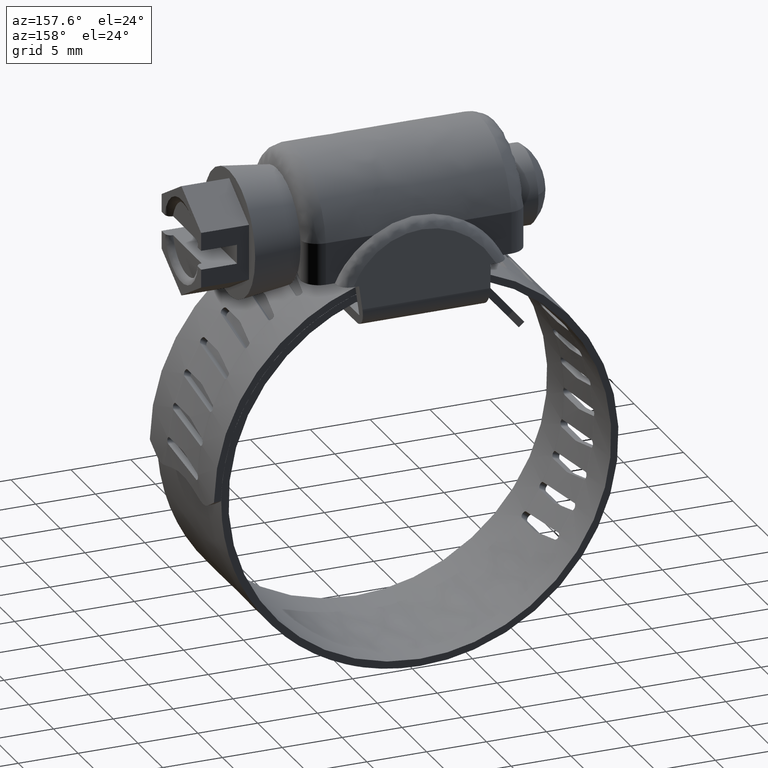
[diagram: clean part render]
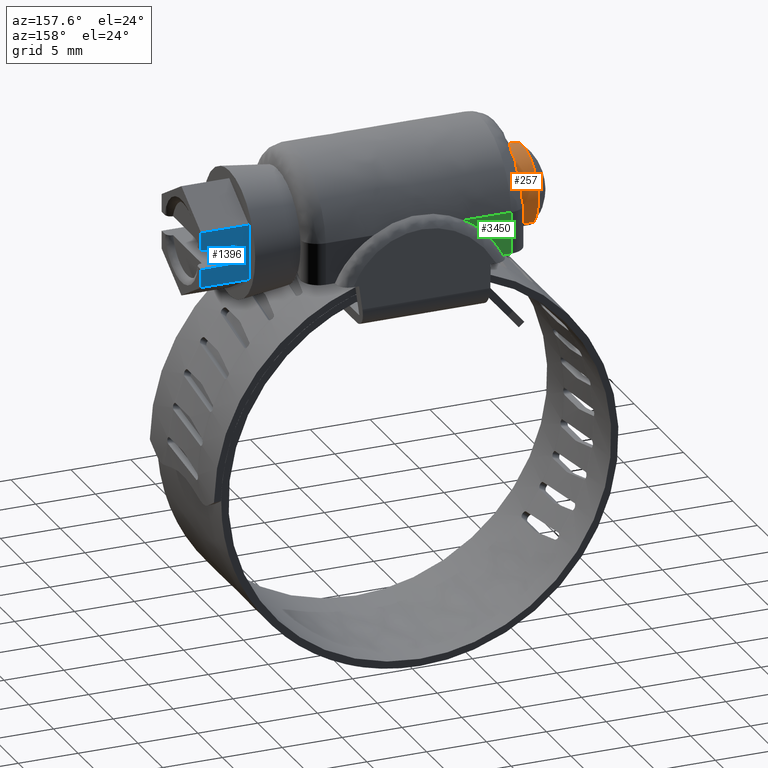
[diagram: same view with three faces highlighted in distinct colors, each labeled with its STEP entity id]
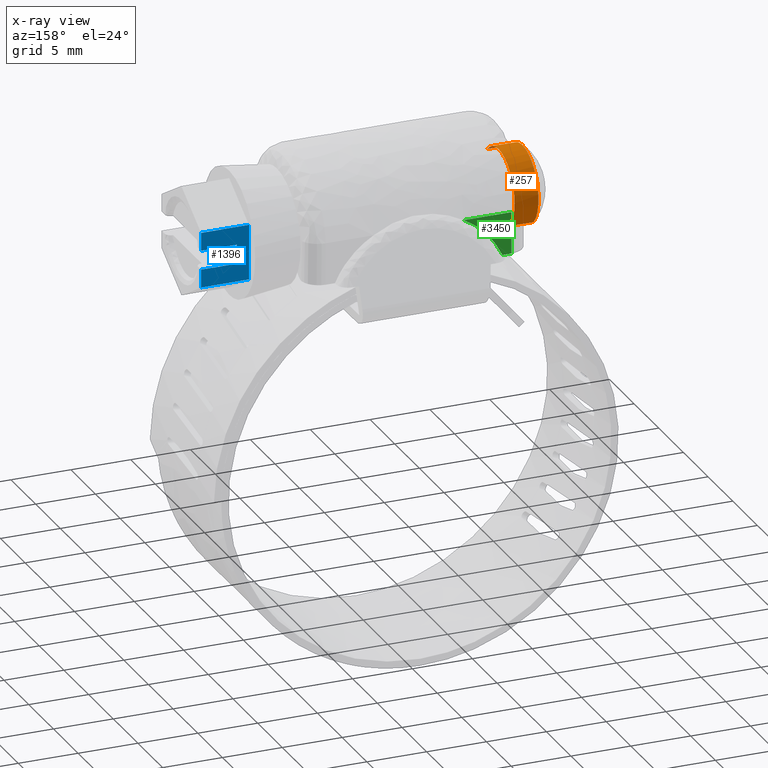
[diagram: x-ray of the same camera — body ghosted, the three highlighted faces saturated]
A machine part, auxiliary view with three faces highlighted in distinct colors.
The next image is the same camera in x-ray (body ghosted, the three faces saturated) — at least one of them is partly hidden behind the body in this view.
Their STEP definitions:

[orange] entity #257 — the highlighted face is a freeform B-spline surface patch.
#64=CARTESIAN_POINT('',(-9.249999999996469,2.277955025551250,13.509019092690551));
#65=VERTEX_POINT('',#64);
#92=CARTESIAN_POINT('',(-9.249999999999901,-2.277955025764112,18.145146907100699));
#93=VERTEX_POINT('',#92);
#104=CARTESIAN_POINT('',(-11.249997677830439,-2.277955695631956,18.145147586493419));
#105=VERTEX_POINT('',#104);
#106=CARTESIAN_POINT('',(-9.249999999999901,-2.277955025764112,18.145146907100699));
#107=CARTESIAN_POINT('',(-11.249997677830439,-2.277955695631956,18.145147586493419));
#108=QUASI_UNIFORM_CURVE('',1,(#106,#107),.UNSPECIFIED.,.F.,.U.);
#109=EDGE_CURVE('',#93,#105,#108,.T.);
#140=CARTESIAN_POINT('',(-11.249999117874390,2.277955235878827,13.509018876771130));
#141=VERTEX_POINT('',#140);
#152=CARTESIAN_POINT('',(-9.249999999996469,2.277955025551250,13.509019092690551));
#153=CARTESIAN_POINT('',(-11.249999117874390,2.277955235878827,13.509018876771130));
#154=QUASI_UNIFORM_CURVE('',1,(#152,#153),.UNSPECIFIED.,.F.,.U.);
#155=EDGE_CURVE('',#65,#141,#154,.T.);
#160=CARTESIAN_POINT('',(-9.199999999999898,-2.277955108974515,18.145146959751290));
#161=CARTESIAN_POINT('',(-9.199999999999898,0.040108850776575,20.423102068725800));
#162=CARTESIAN_POINT('',(-9.199999999999898,2.318063959751089,18.105038108974711));
#163=CARTESIAN_POINT('',(-9.199999999999898,4.596019068725604,15.786974149223621));
#164=CARTESIAN_POINT('',(-9.199999999999898,2.277955108974515,13.509019040249109));
#165=CARTESIAN_POINT('',(-11.301250000000000,-2.277955108974515,18.145146959751290));
#166=CARTESIAN_POINT('',(-11.301250000000003,0.040108850776575,20.423102068725800));
#167=CARTESIAN_POINT('',(-11.301250000000000,2.318063959751089,18.105038108974711));
#168=CARTESIAN_POINT('',(-11.301250000000003,4.596019068725604,15.786974149223621));
#169=CARTESIAN_POINT('',(-11.301250000000000,2.277955108974515,13.509019040249109));
#177=(BOUNDED_SURFACE()B_SPLINE_SURFACE(2,1,((#160,#165),(#161,#166),(#162,#167),(#163,#168),(#164,#169)),.UNSPECIFIED.,.F.,.F.,.U.)B_SPLINE_SURFACE_WITH_KNOTS((3,2,3),(2,2),(0.0,5.384776310850233,10.769552621700470),(0.0,2.101250000000105),.UNSPECIFIED.)GEOMETRIC_REPRESENTATION_ITEM()RATIONAL_B_SPLINE_SURFACE(((1.0,1.0),(0.707106781186548,0.707106781186548),(1.0,1.0),(0.707106781186548,0.707106781186548),(1.0,1.0)))REPRESENTATION_ITEM('')SURFACE());
#178=CARTESIAN_POINT('',(-9.249999999999901,3.249999999999977,15.827083383562670));
#179=VERTEX_POINT('',#178);
#180=CARTESIAN_POINT('',(-9.249999999996469,2.277955025551250,13.509019092690551));
#181=CARTESIAN_POINT('',(-9.249999999996707,2.440966772327295,13.669168954803361));
#182=CARTESIAN_POINT('',(-9.249999999997188,2.707230641516484,13.992732568109160));
#183=CARTESIAN_POINT('',(-9.249999999997899,2.970647667957672,14.479200369867151));
#184=CARTESIAN_POINT('',(-9.249999999998806,3.186202054543656,15.074379809681570));
#185=CARTESIAN_POINT('',(-9.249999999999393,3.250136279318063,15.517891881214631));
#186=CARTESIAN_POINT('',(-9.249999999999901,3.249999999999977,15.827083383562670));
#187=B_SPLINE_CURVE_WITH_KNOTS('',3,(#180,#181,#182,#183,#184,#185,#186),.UNSPECIFIED.,.F.,.U.,(4,1,1,1,4),(9.968592E-009,0.685557835199687,1.250139686008994,1.653399936659048,2.580922555547735),.UNSPECIFIED.);
#188=EDGE_CURVE('',#65,#179,#187,.T.);
#189=ORIENTED_EDGE('',*,*,#188,.F.);
#190=ORIENTED_EDGE('',*,*,#155,.T.);
#191=CARTESIAN_POINT('',(-11.249998063186620,3.228264566141657,16.202339253224601));
#192=VERTEX_POINT('',#191);
#193=CARTESIAN_POINT('',(-11.249998063186620,3.228264566141657,16.202339253224601));
#194=CARTESIAN_POINT('',(-11.249998140800651,3.262166640747532,15.911674565834470));
#195=CARTESIAN_POINT('',(-11.249998277432580,3.253260296724472,15.461064930958591));
#196=CARTESIAN_POINT('',(-11.249998509641131,3.104825038786736,14.813946316189909));
#197=CARTESIAN_POINT('',(-11.249998772399129,2.836171499797581,14.171356779863890));
#198=CARTESIAN_POINT('',(-11.249998989115159,2.508754417789764,13.735613764255250));
#199=CARTESIAN_POINT('',(-11.249999117874390,2.277955235878827,13.509018876771130));
#200=B_SPLINE_CURVE_WITH_KNOTS('',3,(#193,#194,#195,#196,#197,#198,#199),.UNSPECIFIED.,.F.,.U.,(4,1,1,1,4),(6.967566E-009,0.877868364429068,1.339907448031414,1.986749088850541,2.957026219668796),.UNSPECIFIED.);
#201=EDGE_CURVE('',#192,#141,#200,.T.);
#202=ORIENTED_EDGE('',*,*,#201,.F.);
#203=CARTESIAN_POINT('',(-11.249997289154850,0.0,19.077085016472871));
#204=VERTEX_POINT('',#203);
#205=CARTESIAN_POINT('',(-11.249997289154850,0.0,19.077085016472871));
#206=CARTESIAN_POINT('',(-11.249997333602080,0.332531249105949,19.077259061836600));
#207=CARTESIAN_POINT('',(-11.249997414188631,0.861968818583932,18.995071441395950));
#208=CARTESIAN_POINT('',(-11.249997531516531,1.500367480714198,18.726703687369788));
#209=CARTESIAN_POINT('',(-11.249997638395600,2.012177564078893,18.403926981187130));
#210=CARTESIAN_POINT('',(-11.249997753776601,2.483673511411185,17.964482339008651));
#211=CARTESIAN_POINT('',(-11.249997874295570,2.874674491334061,17.391496231942650));
#212=CARTESIAN_POINT('',(-11.249997978078451,3.121776234700911,16.797460117017469));
#213=CARTESIAN_POINT('',(-11.249998036839170,3.205530788350778,16.398064081120591));
#214=CARTESIAN_POINT('',(-11.249998063186620,3.228264566141657,16.202339253224601));
#215=B_SPLINE_CURVE_WITH_KNOTS('',3,(#205,#206,#207,#208,#209,#210,#211,#212,#213,#214),.UNSPECIFIED.,.F.,.U.,(4,1,1,1,1,1,1,4),(0.000000033431857,0.997527856887127,1.588655983280598,2.068952837418572,2.807852144741174,3.509819713833706,4.137896201823478,4.729020680959556),.UNSPECIFIED.);
#216=EDGE_CURVE('',#204,#192,#215,.T.);
#217=ORIENTED_EDGE('',*,*,#216,.F.);
#218=CARTESIAN_POINT('',(-11.249997677830439,-2.277955695631956,18.145147586493419));
#219=CARTESIAN_POINT('',(-11.249997624024910,-2.146685691694869,18.274160099419340));
#220=CARTESIAN_POINT('',(-11.249997515213790,-1.831671923444583,18.535062202774320));
#221=CARTESIAN_POINT('',(-11.249997382184620,-1.252900255222300,18.854031362967952));
#222=CARTESIAN_POINT('',(-11.249997304551711,-0.617900443587892,19.040172162505240));
#223=CARTESIAN_POINT('',(-11.249997289153510,-0.184054042589871,19.077089833374231));
#224=CARTESIAN_POINT('',(-11.249997289154850,0.0,19.077085016472871));
#225=B_SPLINE_CURVE_WITH_KNOTS('',3,(#218,#219,#220,#221,#222,#223,#224),.UNSPECIFIED.,.F.,.U.,(4,1,1,1,4),(0.000000010631196,0.552168233070464,1.222664976976054,1.972030813135420,2.524199035575415),.UNSPECIFIED.);
#226=EDGE_CURVE('',#105,#204,#225,.T.);
#227=ORIENTED_EDGE('',*,*,#226,.F.);
#228=ORIENTED_EDGE('',*,*,#109,.F.);
#229=CARTESIAN_POINT('',(-9.249999999999901,0.0,19.077083000000201));
#230=VERTEX_POINT('',#229);
#231=CARTESIAN_POINT('',(-9.249999999999901,0.0,19.077083000000201));
#232=CARTESIAN_POINT('',(-9.249999999999906,-0.184053893989087,19.077087866388862));
#233=CARTESIAN_POINT('',(-9.249999999999906,-0.617900227352250,19.040170384044849));
#234=CARTESIAN_POINT('',(-9.249999999999888,-1.252899708261698,18.854029896620929));
#235=CARTESIAN_POINT('',(-9.249999999999909,-1.831671161010969,18.535061176540118));
#236=CARTESIAN_POINT('',(-9.249999999999888,-2.146685081631651,18.274159272537268));
#237=CARTESIAN_POINT('',(-9.249999999999901,-2.277955025764112,18.145146907100699));
#238=B_SPLINE_CURVE_WITH_KNOTS('',3,(#231,#232,#233,#234,#235,#236,#237),.UNSPECIFIED.,.F.,.U.,(4,1,1,1,4),(0.000000010625747,0.552167975732359,1.301533462658685,1.972029894082230,2.524197859188253),.UNSPECIFIED.);
#239=EDGE_CURVE('',#230,#93,#238,.T.);
#240=ORIENTED_EDGE('',*,*,#239,.F.);
#241=CARTESIAN_POINT('',(-9.249999999999901,3.249999999999977,15.827083383562670));
#242=CARTESIAN_POINT('',(-9.249999999999904,3.250053151838570,16.079681410820029));
#243=CARTESIAN_POINT('',(-9.249999999999886,3.197031054866998,16.531670394094348));
#244=CARTESIAN_POINT('',(-9.249999999999938,2.992276430684592,17.138925818592309));
#245=CARTESIAN_POINT('',(-9.249999999999863,2.722029322567149,17.629903439603812));
#246=CARTESIAN_POINT('',(-9.249999999999892,2.349916930884039,18.100781773178401));
#247=CARTESIAN_POINT('',(-9.249999999999902,1.873897544978391,18.511411700350049));
#248=CARTESIAN_POINT('',(-9.249999999999840,1.265324171862882,18.846354702737919));
#249=CARTESIAN_POINT('',(-9.250000000000126,0.638139173149644,19.036610825848179));
#250=CARTESIAN_POINT('',(-9.249999999999616,0.199415622940155,19.077096787468800));
#251=CARTESIAN_POINT('',(-9.249999999999901,0.0,19.077083000000201));
#252=B_SPLINE_CURVE_WITH_KNOTS('',3,(#241,#242,#243,#244,#245,#246,#247,#248,#249,#250,#251),.UNSPECIFIED.,.F.,.U.,(4,1,1,1,1,1,1,1,4),(0.000000036830110,0.757786845699583,1.356047684535882,1.914423566028362,2.432925189022096,3.150813178915895,3.788955572222398,4.506866655043279,5.105119878161617),.UNSPECIFIED.);
#253=EDGE_CURVE('',#179,#230,#252,.T.);
#254=ORIENTED_EDGE('',*,*,#253,.F.);
#255=EDGE_LOOP('',(#189,#190,#202,#217,#227,#228,#240,#254));
#256=FACE_OUTER_BOUND('',#255,.T.);
#257=ADVANCED_FACE('',(#256),#177,.T.);

[blue] entity #1396 — the highlighted face is a freeform B-spline surface patch.
#1036=CARTESIAN_POINT('',(14.250000000000000,4.0,16.627121000000098));
#1037=VERTEX_POINT('',#1036);
#1038=CARTESIAN_POINT('',(14.250000000000000,4.0,15.027121000000101));
#1039=VERTEX_POINT('',#1038);
#1040=CARTESIAN_POINT('',(14.250000000000000,4.0,16.627121000000098));
#1041=CARTESIAN_POINT('',(14.250000000000000,4.0,15.027121000000101));
#1042=QUASI_UNIFORM_CURVE('',1,(#1040,#1041),.UNSPECIFIED.,.F.,.U.);
#1043=EDGE_CURVE('',#1037,#1039,#1042,.T.);
#1087=CARTESIAN_POINT('',(17.250000000000000,4.0,16.627121000000098));
#1088=VERTEX_POINT('',#1087);
#1089=CARTESIAN_POINT('',(14.250000000000000,4.0,16.627121000000098));
#1090=CARTESIAN_POINT('',(17.250000000000000,4.0,16.627121000000098));
#1091=QUASI_UNIFORM_CURVE('',1,(#1089,#1090),.UNSPECIFIED.,.F.,.U.);
#1092=EDGE_CURVE('',#1037,#1088,#1091,.T.);
#1110=CARTESIAN_POINT('',(17.250000000000000,4.0,15.027121000000101));
#1111=VERTEX_POINT('',#1110);
#1117=CARTESIAN_POINT('',(14.250000000000000,4.0,15.027121000000101));
#1118=CARTESIAN_POINT('',(17.250000000000000,4.0,15.027121000000101));
#1119=QUASI_UNIFORM_CURVE('',1,(#1117,#1118),.UNSPECIFIED.,.F.,.U.);
#1120=EDGE_CURVE('',#1039,#1111,#1119,.T.);
#1216=CARTESIAN_POINT('',(17.250000000000000,4.0,13.517720000000001));
#1217=VERTEX_POINT('',#1216);
#1224=CARTESIAN_POINT('',(13.250000000000000,4.0,13.517720000000001));
#1225=VERTEX_POINT('',#1224);
#1231=CARTESIAN_POINT('',(13.250000000000000,4.0,13.517720000000001));
#1232=CARTESIAN_POINT('',(17.250000000000000,4.0,13.517720000000001));
#1233=QUASI_UNIFORM_CURVE('',1,(#1231,#1232),.UNSPECIFIED.,.F.,.U.);
#1234=EDGE_CURVE('',#1225,#1217,#1233,.T.);
#1244=CARTESIAN_POINT('',(17.250000000000000,4.0,18.136521999999999));
#1245=VERTEX_POINT('',#1244);
#1251=CARTESIAN_POINT('',(13.250000000000000,4.0,18.136521999999999));
#1252=VERTEX_POINT('',#1251);
#1253=CARTESIAN_POINT('',(13.250000000000000,4.0,18.136521999999999));
#1254=CARTESIAN_POINT('',(17.250000000000000,4.0,18.136521999999999));
#1255=QUASI_UNIFORM_CURVE('',1,(#1253,#1254),.UNSPECIFIED.,.F.,.U.);
#1256=EDGE_CURVE('',#1252,#1245,#1255,.T.);
#1302=CARTESIAN_POINT('',(13.250000000000000,4.0,13.517720000000001));
#1303=CARTESIAN_POINT('',(13.250000000000000,4.0,18.136521999999999));
#1304=QUASI_UNIFORM_CURVE('',1,(#1302,#1303),.UNSPECIFIED.,.F.,.U.);
#1305=EDGE_CURVE('',#1225,#1252,#1304,.T.);
#1327=CARTESIAN_POINT('',(17.250000000000000,4.0,16.627121000000098));
#1328=CARTESIAN_POINT('',(17.250000000000000,4.0,18.136521999999999));
#1329=QUASI_UNIFORM_CURVE('',1,(#1327,#1328),.UNSPECIFIED.,.F.,.U.);
#1330=EDGE_CURVE('',#1088,#1245,#1329,.T.);
#1357=CARTESIAN_POINT('',(17.250000000000000,4.0,13.517720000000001));
#1358=CARTESIAN_POINT('',(17.250000000000000,4.0,15.027121000000101));
#1359=QUASI_UNIFORM_CURVE('',1,(#1357,#1358),.UNSPECIFIED.,.F.,.U.);
#1360=EDGE_CURVE('',#1217,#1111,#1359,.T.);
#1381=CARTESIAN_POINT('',(13.050200007752780,4.0,13.287011049340570));
#1382=CARTESIAN_POINT('',(13.050200007752780,4.0,18.367231611384359));
#1383=CARTESIAN_POINT('',(17.449800099535580,4.0,13.287011049340570));
#1384=CARTESIAN_POINT('',(17.449800099535580,4.0,18.367231611384359));
#1385=B_SPLINE_SURFACE_WITH_KNOTS('',1,1,((#1381,#1383),(#1382,#1384)),.UNSPECIFIED.,.F.,.F.,.U.,(2,2),(2,2),(0.0,5.080220562043783),(0.0,4.399600091782808),.UNSPECIFIED.);
#1386=ORIENTED_EDGE('',*,*,#1043,.T.);
#1387=ORIENTED_EDGE('',*,*,#1120,.T.);
#1388=ORIENTED_EDGE('',*,*,#1360,.F.);
#1389=ORIENTED_EDGE('',*,*,#1234,.F.);
#1390=ORIENTED_EDGE('',*,*,#1305,.T.);
#1391=ORIENTED_EDGE('',*,*,#1256,.T.);
#1392=ORIENTED_EDGE('',*,*,#1330,.F.);
#1393=ORIENTED_EDGE('',*,*,#1092,.F.);
#1394=EDGE_LOOP('',(#1386,#1387,#1388,#1389,#1390,#1391,#1392,#1393));
#1395=FACE_OUTER_BOUND('',#1394,.T.);
#1396=ADVANCED_FACE('',(#1395),#1385,.T.);

[green] entity #3450 — the highlighted face is a freeform B-spline surface patch.
#1994=CARTESIAN_POINT('',(-5.339251292383731,6.250000000000000,15.423114079441900));
#1995=VERTEX_POINT('',#1994);
#2004=CARTESIAN_POINT('',(-3.767731017053410,6.249999633170980,16.577121365332999));
#2005=VERTEX_POINT('',#2004);
#2006=CARTESIAN_POINT('',(-3.767731017053410,6.249999633170980,16.577121365332999));
#2007=CARTESIAN_POINT('',(-4.339600632362733,6.249999754729132,16.264307977887221));
#2008=CARTESIAN_POINT('',(-4.869551024874578,6.249999878441824,15.875061626578260));
#2009=CARTESIAN_POINT('',(-5.339251292383731,6.250000000000000,15.423114079441900));
#2010=B_SPLINE_CURVE_WITH_KNOTS('',3,(#2006,#2007,#2008,#2009),.UNSPECIFIED.,.F.,.U.,(4,4),(8.225398E-010,1.955452110250090),.UNSPECIFIED.);
#2011=EDGE_CURVE('',#2005,#1995,#2010,.T.);
#2783=CARTESIAN_POINT('',(-7.749999999999810,6.249999633170980,16.577121365332999));
#2784=VERTEX_POINT('',#2783);
#2798=CARTESIAN_POINT('',(-7.750000000000000,6.250000000000000,13.077121000000201));
#2799=VERTEX_POINT('',#2798);
#2800=CARTESIAN_POINT('',(-7.750000000000000,6.250000000000000,13.077121000000201));
#2801=CARTESIAN_POINT('',(-7.749999999999810,6.249999633170980,16.577121365332999));
#2802=QUASI_UNIFORM_CURVE('',1,(#2800,#2801),.UNSPECIFIED.,.F.,.U.);
#2803=EDGE_CURVE('',#2799,#2784,#2802,.T.);
#3134=CARTESIAN_POINT('',(-6.999982372892950,6.250000000000000,13.077121000000201));
#3135=VERTEX_POINT('',#3134);
#3163=CARTESIAN_POINT('',(-6.999982372892950,6.250000000000000,13.077121000000201));
#3164=CARTESIAN_POINT('',(-7.750000000000000,6.250000000000000,13.077121000000201));
#3165=QUASI_UNIFORM_CURVE('',1,(#3163,#3164),.UNSPECIFIED.,.F.,.U.);
#3166=EDGE_CURVE('',#3135,#2799,#3165,.T.);
#3398=CARTESIAN_POINT('',(-3.767731017053410,6.249999633170980,16.577121365332999));
#3399=CARTESIAN_POINT('',(-7.749999999999810,6.249999633170980,16.577121365332999));
#3400=QUASI_UNIFORM_CURVE('',1,(#3398,#3399),.UNSPECIFIED.,.F.,.U.);
#3401=EDGE_CURVE('',#2005,#2784,#3400,.T.);
#3431=CARTESIAN_POINT('',(-7.948914327979773,6.250000000000000,16.751946783568140));
#3432=CARTESIAN_POINT('',(-7.948914327979773,6.250000000000000,12.902295613057500));
#3433=CARTESIAN_POINT('',(-3.568816582260860,6.250000000000000,16.751946783568140));
#3434=CARTESIAN_POINT('',(-3.568816582260860,6.250000000000000,12.902295613057500));
#3435=B_SPLINE_SURFACE_WITH_KNOTS('',1,1,((#3431,#3433),(#3432,#3434)),.UNSPECIFIED.,.F.,.F.,.U.,(2,2),(2,2),(0.0,3.849651170510648),(0.0,4.380097745718913),.UNSPECIFIED.);
#3436=CARTESIAN_POINT('',(-6.999982372892950,6.250000000000000,13.077121000000201));
#3437=CARTESIAN_POINT('',(-6.831199415927927,6.249999999999993,13.447022794601320));
#3438=CARTESIAN_POINT('',(-6.361404713546040,6.250000000000060,14.292004818558340));
#3439=CARTESIAN_POINT('',(-5.740537112929933,6.249999999999956,15.036554687467730));
#3440=CARTESIAN_POINT('',(-5.339251292383731,6.250000000000000,15.423114079441900));
#3441=B_SPLINE_CURVE_WITH_KNOTS('',3,(#3436,#3437,#3438,#3439,#3440),.UNSPECIFIED.,.F.,.U.,(4,1,4),(1.545529E-009,1.219769141803715,2.891303785070769),.UNSPECIFIED.);
#3442=EDGE_CURVE('',#3135,#1995,#3441,.T.);
#3443=ORIENTED_EDGE('',*,*,#3442,.F.);
#3444=ORIENTED_EDGE('',*,*,#3166,.T.);
#3445=ORIENTED_EDGE('',*,*,#2803,.T.);
#3446=ORIENTED_EDGE('',*,*,#3401,.F.);
#3447=ORIENTED_EDGE('',*,*,#2011,.T.);
#3448=EDGE_LOOP('',(#3443,#3444,#3445,#3446,#3447));
#3449=FACE_OUTER_BOUND('',#3448,.T.);
#3450=ADVANCED_FACE('',(#3449),#3435,.F.);